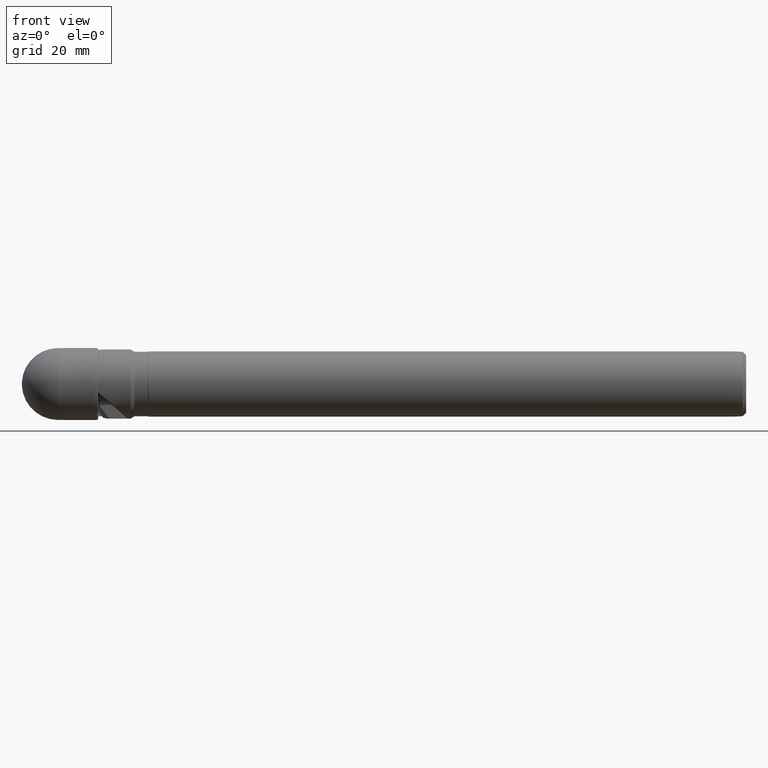
[diagram: clean part render]
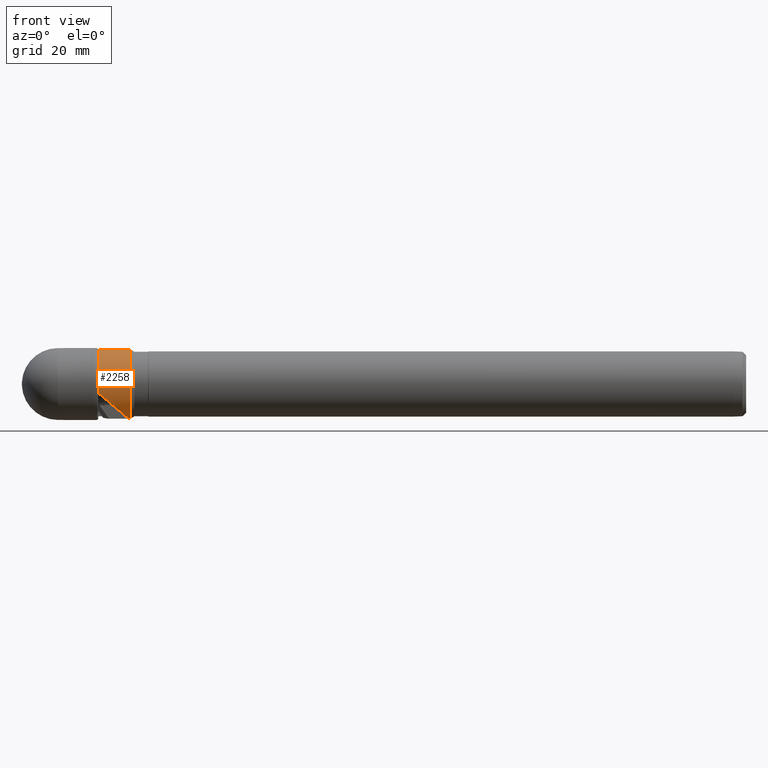
[diagram: same view with one face highlighted and labeled with its STEP entity id]
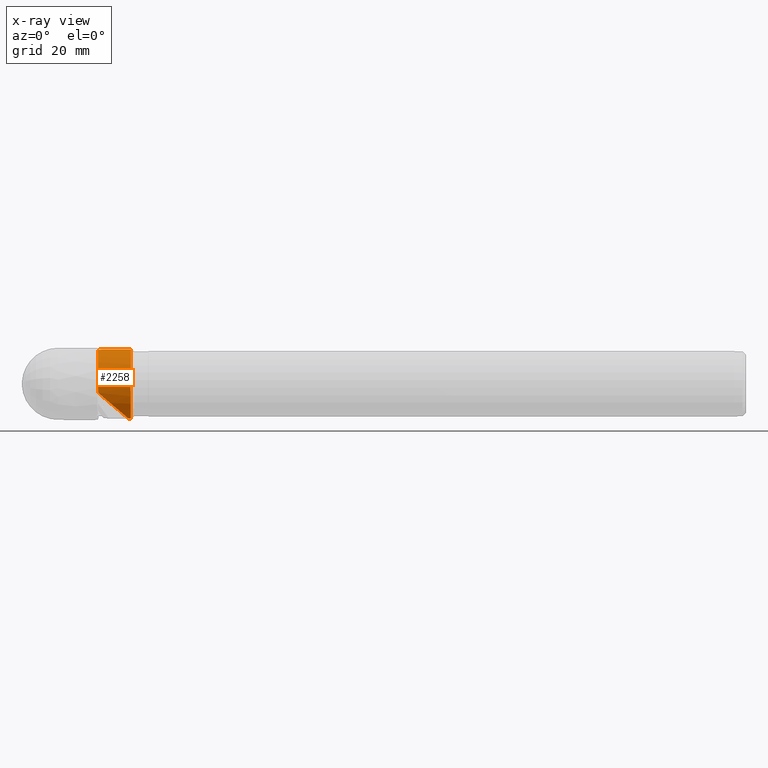
[diagram: x-ray of the same camera — body ghosted, the highlighted face saturated]
A machine part, front view. The second image highlights one B-rep face of the part: STEP entity #2258.
The next image is the same camera in x-ray: the body ghosted, the highlighted face saturated — about 0% of this face is hidden behind the body in this view.
In plain terms, the highlighted cylindrical surface (edge-blend (fillet) strip) has radius 9.5431 mm, axis along (-1, -0, -0).
Its self-contained STEP definition (entity closure, byte-faithful):
#124 = AXIS2_PLACEMENT_3D ( 'NONE', #362, #1207, #1741 ) ;
#220 = VERTEX_POINT ( 'NONE', #1984 ) ;
#223 = EDGE_CURVE ( 'NONE', #2336, #1190, #1361, .T. ) ;
#361 = VERTEX_POINT ( 'NONE', #2096 ) ;
#362 = CARTESIAN_POINT ( 'NONE',  ( 30.03724642999997130, 0.0000000000000000000, 0.0000000000000000000 ) ) ;
#382 = VERTEX_POINT ( 'NONE', #1845 ) ;
#404 = AXIS2_PLACEMENT_3D ( 'NONE', #2520, #3714, #1654 ) ;
#536 = CARTESIAN_POINT ( 'NONE',  ( 22.22240437256096257, 0.0000000000000000000, 9.543129998145154502 ) ) ;
#607 = VERTEX_POINT ( 'NONE', #2534 ) ;
#718 = B_SPLINE_CURVE_WITH_KNOTS ( 'NONE', 3,
 ( #2835, #1961, #2552, #2936, #3502, #949, #928, #3581 ),
 .UNSPECIFIED., .F., .F.,
 ( 4, 2, 2, 4 ),
 ( 1.301042606982605321E-18, 9.872310396971331484E-05, 0.0001974462079394253286, 0.0003948924158788400863 ),
 .UNSPECIFIED. ) ;
#720 = EDGE_LOOP ( 'NONE', ( #955, #1636, #3365, #753, #2421, #3346, #2022, #3209, #3606 ) ) ;
#753 = ORIENTED_EDGE ( 'NONE', *, *, #2244, .F. ) ;
#852 = VECTOR ( 'NONE', #3701, 1000.000000000000000 ) ;
#872 =( BOUNDED_CURVE ( )  B_SPLINE_CURVE ( 3, ( #3576, #2397, #2681, #960 ),
 .UNSPECIFIED., .F., .T. ) 
 B_SPLINE_CURVE_WITH_KNOTS ( ( 4, 4 ),
 ( 1.832291807014620577, 3.055080869246681541 ),
 .UNSPECIFIED. ) 
 CURVE ( )  GEOMETRIC_REPRESENTATION_ITEM ( )  RATIONAL_B_SPLINE_CURVE ( ( 1.000000000000000000, 0.8792322264095595585, 0.8792322264095595585, 1.000000000000000000 ) ) 
 REPRESENTATION_ITEM ( '' )  );
#928 = CARTESIAN_POINT ( 'NONE',  ( 29.22616741187923850, -0.6245637600000014666, -9.522670333010202270 ) ) ;
#949 = CARTESIAN_POINT ( 'NONE',  ( 29.29234463875364369, -0.6372509889577623321, -9.521880934969921384 ) ) ;
#955 = ORIENTED_EDGE ( 'NONE', *, *, #223, .F. ) ;
#960 = CARTESIAN_POINT ( 'NONE',  ( 29.45183954122872905, -0.8245637599999995349, -9.507440495064516384 ) ) ;
#1048 = DIRECTION ( 'NONE',  ( -1.000000000000000000, -0.0000000000000000000, -0.0000000000000000000 ) ) ;
#1127 = CARTESIAN_POINT ( 'NONE',  ( 30.03724642999997130, 1.168696360607554739E-15, -9.543129998145152726 ) ) ;
#1174 = CARTESIAN_POINT ( 'NONE',  ( 23.96417026236567338, -0.4166364262609291158, -9.536307671364408378 ) ) ;
#1190 = VERTEX_POINT ( 'NONE', #2944 ) ;
#1207 = DIRECTION ( 'NONE',  ( -1.000000000000000000, -0.0000000000000000000, -0.0000000000000000000 ) ) ;
#1355 = LINE ( 'NONE', #2538, #3023 ) ;
#1361 = LINE ( 'NONE', #3169, #852 ) ;
#1543 = VERTEX_POINT ( 'NONE', #2052 ) ;
#1554 = CARTESIAN_POINT ( 'NONE',  ( -4.762142644779060241, 0.0000000000000000000, 9.543129998145154502 ) ) ;
#1636 = ORIENTED_EDGE ( 'NONE', *, *, #3344, .T. ) ;
#1654 = DIRECTION ( 'NONE',  ( 0.0000000000000000000, 0.0000000000000000000, 1.000000000000000000 ) ) ;
#1660 = EDGE_CURVE ( 'NONE', #361, #3533, #3055, .T. ) ;
#1673 = CYLINDRICAL_SURFACE ( 'NONE', #404, 9.543129998145154502 ) ;
#1741 = DIRECTION ( 'NONE',  ( 0.0000000000000000000, 0.0000000000000000000, 1.000000000000000000 ) ) ;
#1755 =( BOUNDED_CURVE ( )  B_SPLINE_CURVE ( 3, ( #3147, #3421, #1979, #536 ),
 .UNSPECIFIED., .F., .T. ) 
 B_SPLINE_CURVE_WITH_KNOTS ( ( 4, 4 ),
 ( 2.268214849280648426, 2.452695705409258853 ),
 .UNSPECIFIED. ) 
 CURVE ( )  GEOMETRIC_REPRESENTATION_ITEM ( )  RATIONAL_B_SPLINE_CURVE ( ( 1.000000000000000000, 0.9971659114374711308, 0.9971659114374711308, 1.000000000000000000 ) ) 
 REPRESENTATION_ITEM ( '' )  );
#1807 = EDGE_CURVE ( 'NONE', #220, #1543, #718, .T. ) ;
#1845 = CARTESIAN_POINT ( 'NONE',  ( 22.22240437256096257, 0.0000000000000000000, 9.543129998145154502 ) ) ;
#1897 = CARTESIAN_POINT ( 'NONE',  ( 21.12077164187794764, -9.218705937786022986, -2.467142272777691492 ) ) ;
#1910 = EDGE_CURVE ( 'NONE', #2181, #382, #3028, .T. ) ;
#1961 = CARTESIAN_POINT ( 'NONE',  ( 29.45524408653859538, -0.7913904449817464881, -9.510317558915435399 ) ) ;
#1979 = CARTESIAN_POINT ( 'NONE',  ( 21.88992539618554645, -0.5876753048155829440, 9.543129998145154502 ) ) ;
#1984 = CARTESIAN_POINT ( 'NONE',  ( 29.45183954122872905, -0.8245637599999995349, -9.507440495064516384 ) ) ;
#2020 = VECTOR ( 'NONE', #2167, 1000.000000000000000 ) ;
#2022 = ORIENTED_EDGE ( 'NONE', *, *, #1807, .T. ) ;
#2052 = CARTESIAN_POINT ( 'NONE',  ( 29.16000397424591739, -0.6245637600000000234, -9.522670333010200494 ) ) ;
#2096 = CARTESIAN_POINT ( 'NONE',  ( 21.12077164187796896, -1.750555726587343042, 9.381198474054748715 ) ) ;
#2167 = DIRECTION ( 'NONE',  ( -1.000000000000000000, -0.0000000000000000000, -0.0000000000000000000 ) ) ;
#2171 = CARTESIAN_POINT ( 'NONE',  ( 21.12077164187794764, 0.0000000000000000000, 0.0000000000000000000 ) ) ;
#2181 = VERTEX_POINT ( 'NONE', #2358 ) ;
#2220 = EDGE_CURVE ( 'NONE', #3533, #220, #872, .T. ) ;
#2244 = EDGE_CURVE ( 'NONE', #361, #382, #1755, .T. ) ;
#2258 = ADVANCED_FACE ( 'NONE', ( #2867 ), #1673, .T. ) ;
#2336 = VERTEX_POINT ( 'NONE', #1127 ) ;
#2358 = CARTESIAN_POINT ( 'NONE',  ( 30.03724642999997130, 0.0000000000000000000, 9.543129998145152726 ) ) ;
#2397 = CARTESIAN_POINT ( 'NONE',  ( 25.86869966455230241, -8.144917455628558400, -6.479452533768951028 ) ) ;
#2413 = CIRCLE ( 'NONE', #124, 9.543129998145152726 ) ;
#2421 = ORIENTED_EDGE ( 'NONE', *, *, #1660, .T. ) ;
#2427 = DIRECTION ( 'NONE',  ( 1.000000000000000000, 0.0000000000000000000, 0.0000000000000000000 ) ) ;
#2468 = DIRECTION ( 'NONE',  ( 0.0000000000000000000, 0.0000000000000000000, 1.000000000000000000 ) ) ;
#2520 = CARTESIAN_POINT ( 'NONE',  ( -4.762142644779060241, 0.0000000000000000000, 0.0000000000000000000 ) ) ;
#2534 = CARTESIAN_POINT ( 'NONE',  ( 24.07353909684228910, -0.6245637599999998013, -9.522670333010200494 ) ) ;
#2538 = CARTESIAN_POINT ( 'NONE',  ( -4.762142644779060241, -0.6245637600000000234, -9.522670333010200494 ) ) ;
#2545 = CARTESIAN_POINT ( 'NONE',  ( 23.73039629956289076, 1.168696360607554936E-15, -9.543129998145154502 ) ) ;
#2552 = CARTESIAN_POINT ( 'NONE',  ( 29.44466822380288917, -0.7583046336618288752, -9.512992691878370266 ) ) ;
#2586 = EDGE_CURVE ( 'NONE', #1190, #607, #2653, .T. ) ;
#2616 = CARTESIAN_POINT ( 'NONE',  ( 23.84974843385297660, -0.2083740701556429653, -9.543129998145152726 ) ) ;
#2653 =( BOUNDED_CURVE ( )  B_SPLINE_CURVE ( 3, ( #2545, #2616, #1174, #3725 ),
 .UNSPECIFIED., .F., .T. ) 
 B_SPLINE_CURVE_WITH_KNOTS ( ( 4, 4 ),
 ( 2.465021783903519115, 2.530515021506241968 ),
 .UNSPECIFIED. ) 
 CURVE ( )  GEOMETRIC_REPRESENTATION_ITEM ( )  RATIONAL_B_SPLINE_CURVE ( ( 1.000000000000000000, 0.9996425849266430408, 0.9996425849266430408, 1.000000000000000000 ) ) 
 REPRESENTATION_ITEM ( '' )  );
#2681 = CARTESIAN_POINT ( 'NONE',  ( 29.02716286654070288, -4.962541618449033187, -9.148560880353203473 ) ) ;
#2835 = CARTESIAN_POINT ( 'NONE',  ( 29.45183954122872905, -0.8245637599999995349, -9.507440495064516384 ) ) ;
#2867 = FACE_OUTER_BOUND ( 'NONE', #720, .T. ) ;
#2936 = CARTESIAN_POINT ( 'NONE',  ( 29.40576937653792555, -0.7045850517858068818, -9.517122242461963921 ) ) ;
#2944 = CARTESIAN_POINT ( 'NONE',  ( 23.73039629956289076, 1.168696360607554936E-15, -9.543129998145154502 ) ) ;
#3023 = VECTOR ( 'NONE', #1048, 1000.000000000000000 ) ;
#3028 = LINE ( 'NONE', #1554, #2020 ) ;
#3055 = CIRCLE ( 'NONE', #3431, 9.543129998145154502 ) ;
#3147 = CARTESIAN_POINT ( 'NONE',  ( 21.12077164187796896, -1.750555726587343042, 9.381198474054748715 ) ) ;
#3169 = CARTESIAN_POINT ( 'NONE',  ( -4.762142644779060241, 1.168696360607554936E-15, -9.543129998145154502 ) ) ;
#3209 = ORIENTED_EDGE ( 'NONE', *, *, #3545, .T. ) ;
#3344 = EDGE_CURVE ( 'NONE', #2336, #2181, #2413, .T. ) ;
#3346 = ORIENTED_EDGE ( 'NONE', *, *, #2220, .T. ) ;
#3365 = ORIENTED_EDGE ( 'NONE', *, *, #1910, .T. ) ;
#3421 = CARTESIAN_POINT ( 'NONE',  ( 21.52167081987509079, -1.172852323841383715, 9.488999412574957049 ) ) ;
#3431 = AXIS2_PLACEMENT_3D ( 'NONE', #2171, #2427, #2468 ) ;
#3502 = CARTESIAN_POINT ( 'NONE',  ( 29.37893624270666848, -0.6839782690187767855, -9.518600090838010175 ) ) ;
#3533 = VERTEX_POINT ( 'NONE', #1897 ) ;
#3545 = EDGE_CURVE ( 'NONE', #1543, #607, #1355, .T. ) ;
#3576 = CARTESIAN_POINT ( 'NONE',  ( 21.12077164187794764, -9.218705937786022986, -2.467142272777691492 ) ) ;
#3581 = CARTESIAN_POINT ( 'NONE',  ( 29.16000397424591739, -0.6245637600000000234, -9.522670333010200494 ) ) ;
#3606 = ORIENTED_EDGE ( 'NONE', *, *, #2586, .F. ) ;
#3701 = DIRECTION ( 'NONE',  ( -1.000000000000000000, -0.0000000000000000000, -0.0000000000000000000 ) ) ;
#3714 = DIRECTION ( 'NONE',  ( -1.000000000000000000, -0.0000000000000000000, -0.0000000000000000000 ) ) ;
#3725 = CARTESIAN_POINT ( 'NONE',  ( 24.07353909684228910, -0.6245637599999998013, -9.522670333010200494 ) ) ;